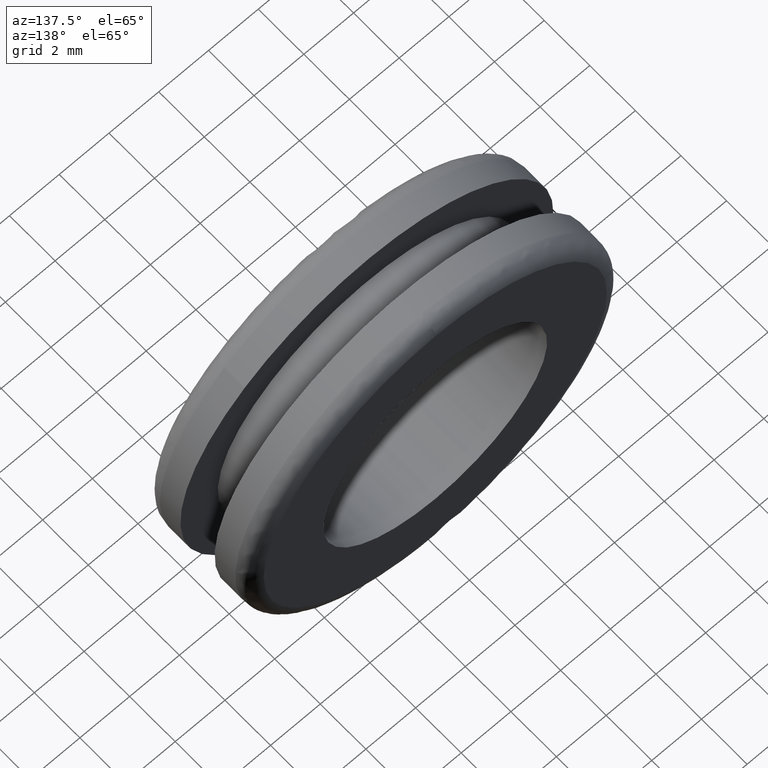
[diagram: clean part render]
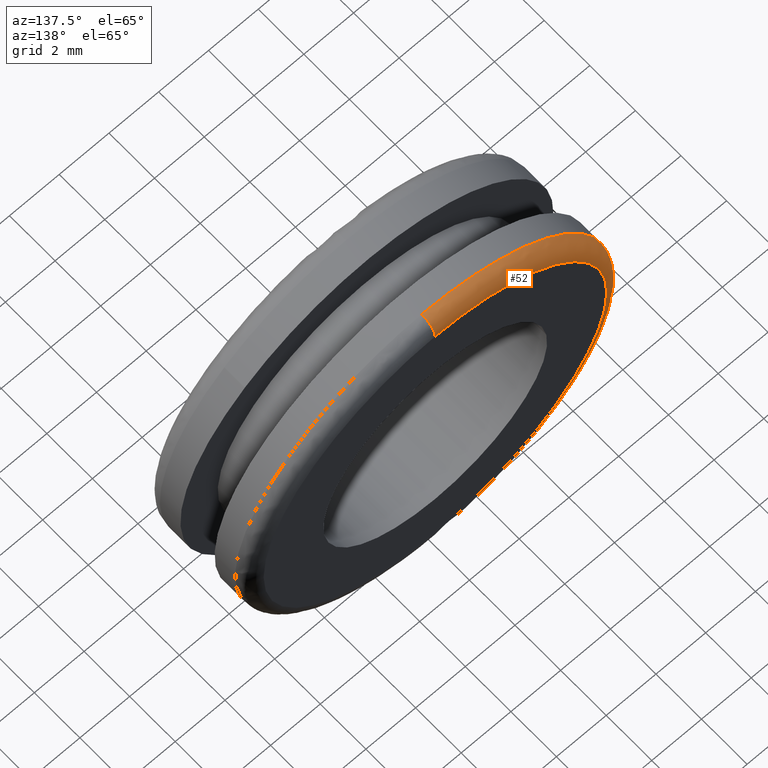
[diagram: same view with one face highlighted and labeled with its STEP entity id]
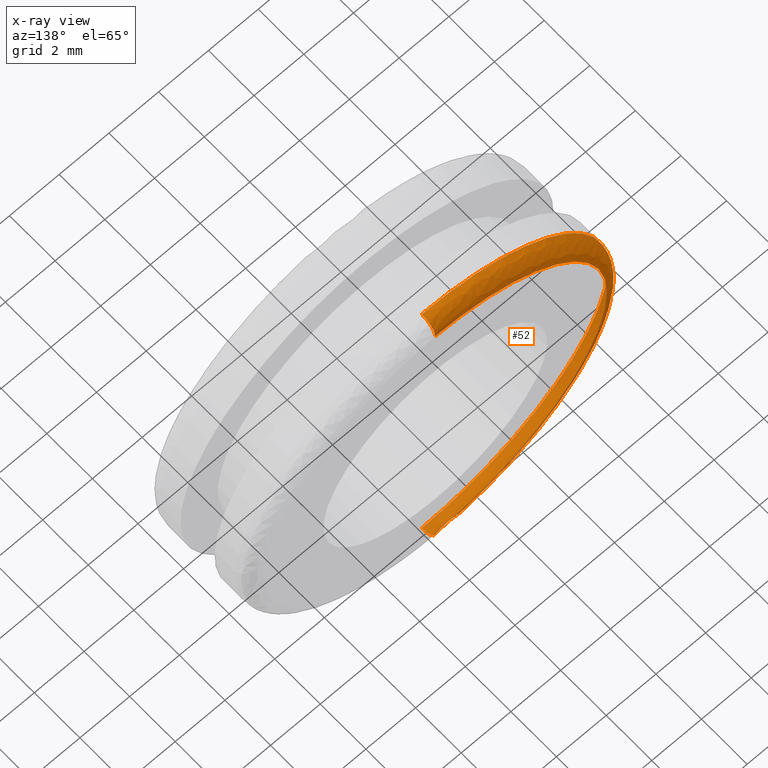
[diagram: x-ray of the same camera — body ghosted, the highlighted face saturated]
A machine part, auxiliary view. The second image highlights one B-rep face of the part: STEP entity #52.
The next image is the same camera in x-ray: the body ghosted, the highlighted face saturated — about 0% of this face is hidden behind the body in this view.
In plain terms, the highlighted face is a freeform B-spline surface patch.
Its self-contained STEP definition (entity closure, byte-faithful):
#52=ADVANCED_FACE('',(#181),#180,.T.);
#180=( BOUNDED_SURFACE() B_SPLINE_SURFACE( 2,2,((#284,#285,#286,#287,#288),(#289,#290,#291,#292,#293),(#294,#295,#296,#297,#298),(#299,#300,#301,#302,#303),(#304,#305,#306,#307,#308)), .UNSPECIFIED.,.F.,.F.,.F.) B_SPLINE_SURFACE_WITH_KNOTS((3,2,3),(3,2,3),(0.00000000000E+000,5.00000000000E-001,1.00000000000E+000),(0.00000000000E+000,5.00000000000E-001,1.00000000000E+000), .UNSPECIFIED. ) GEOMETRIC_REPRESENTATION_ITEM() RATIONAL_B_SPLINE_SURFACE(((1.00000000000E+000,7.07106781187E-001,1.00000000000E+000,7.07106781187E-001,1.00000000000E+000),(7.07106781187E-001,5.00000000000E-001,7.07106781187E-001,5.00000000000E-001,7.07106781187E-001),(1.00000000000E+000,7.07106781187E-001,1.00000000000E+000,7.07106781187E-001,1.00000000000E+000),(7.07106781187E-001,5.00000000000E-001,7.07106781187E-001,5.00000000000E-001,7.07106781187E-001),(1.00000000000E+000,7.07106781187E-001,1.00000000000E+000,7.07106781187E-001,1.00000000000E+000))) REPRESENTATION_ITEM('') SURFACE() );
#181=FACE_OUTER_BOUND('',#309,.T.);
#284=CARTESIAN_POINT('',(-1.72513750247E-014,3.90000000000E+000,6.30000000000E+000));
#285=CARTESIAN_POINT('',(-1.60042791616E-014,4.50000000000E+000,6.30000000000E+000));
#286=CARTESIAN_POINT('',(-1.60777555428E-014,4.50000000000E+000,6.90000000000E+000));
#287=CARTESIAN_POINT('',(-1.61512319240E-014,4.50000000000E+000,7.50000000000E+000));
#288=CARTESIAN_POINT('',(-1.73983277871E-014,3.90000000000E+000,7.50000000000E+000));
#289=CARTESIAN_POINT('',(-6.30000000000E+000,3.90000000000E+000,6.30000000000E+000));
#290=CARTESIAN_POINT('',(-6.30000000000E+000,4.50000000000E+000,6.30000000000E+000));
#291=CARTESIAN_POINT('',(-6.90000000000E+000,4.50000000000E+000,6.90000000000E+000));
#292=CARTESIAN_POINT('',(-7.50000000000E+000,4.50000000000E+000,7.50000000000E+000));
#293=CARTESIAN_POINT('',(-7.50000000000E+000,3.90000000000E+000,7.50000000000E+000));
#294=CARTESIAN_POINT('',(-6.30000000000E+000,3.90000000000E+000,-9.40608059639E-014));
#295=CARTESIAN_POINT('',(-6.30000000000E+000,4.50000000000E+000,-8.84053971206E-014));
#296=CARTESIAN_POINT('',(-6.90000000000E+000,4.50000000000E+000,-8.84421340978E-014));
#297=CARTESIAN_POINT('',(-7.50000000000E+000,4.50000000000E+000,-8.84788710751E-014));
#298=CARTESIAN_POINT('',(-7.50000000000E+000,3.90000000000E+000,-9.41342799184E-014));
#299=CARTESIAN_POINT('',(-6.30000000000E+000,3.90000000000E+000,-6.30000000000E+000));
#300=CARTESIAN_POINT('',(-6.30000000000E+000,4.50000000000E+000,-6.30000000000E+000));
#301=CARTESIAN_POINT('',(-6.90000000000E+000,4.50000000000E+000,-6.90000000000E+000));
#302=CARTESIAN_POINT('',(-7.50000000000E+000,4.50000000000E+000,-7.50000000000E+000));
#303=CARTESIAN_POINT('',(-7.50000000000E+000,3.90000000000E+000,-7.50000000000E+000));
#304=CARTESIAN_POINT('',(-1.64798985023E-014,3.90000000000E+000,-6.30000000000E+000));
#305=CARTESIAN_POINT('',(-1.52328026392E-014,4.50000000000E+000,-6.30000000000E+000));
#306=CARTESIAN_POINT('',(-1.52328050660E-014,4.50000000000E+000,-6.90000000000E+000));
#307=CARTESIAN_POINT('',(-1.52328074927E-014,4.50000000000E+000,-7.50000000000E+000));
#308=CARTESIAN_POINT('',(-1.64799033558E-014,3.90000000000E+000,-7.50000000000E+000));
#309=EDGE_LOOP('',(#456,#457,#458,#459,#460,#461,#462));
#456=ORIENTED_EDGE('',*,*,#520,.F.);
#457=ORIENTED_EDGE('',*,*,#517,.F.);
#458=ORIENTED_EDGE('',*,*,#516,.F.);
#459=ORIENTED_EDGE('',*,*,#522,.F.);
#460=ORIENTED_EDGE('',*,*,#492,.T.);
#461=ORIENTED_EDGE('',*,*,#494,.T.);
#462=ORIENTED_EDGE('',*,*,#523,.T.);
#492=EDGE_CURVE('',#610,#611,#612,.T.);
#494=EDGE_CURVE('',#611,#618,#625,.T.);
#516=EDGE_CURVE('',#766,#773,#774,.T.);
#517=EDGE_CURVE('',#773,#780,#781,.T.);
#520=EDGE_CURVE('',#780,#799,#800,.T.);
#522=EDGE_CURVE('',#610,#766,#812,.T.);
#523=EDGE_CURVE('',#618,#799,#818,.T.);
#610=VERTEX_POINT('',#896);
#611=VERTEX_POINT('',#897);
#612=CIRCLE('',#901,6.90000000520E+000);
#618=VERTEX_POINT('',#902);
#625=CIRCLE('',#910,6.90000000520E+000);
#766=VERTEX_POINT('',#994);
#773=VERTEX_POINT('',#999);
#774=CIRCLE('',#1003,7.49999999998E+000);
#780=VERTEX_POINT('',#1004);
#781=CIRCLE('',#1008,7.50000000000E+000);
#799=VERTEX_POINT('',#1013);
#800=CIRCLE('',#1017,7.50000000000E+000);
#812=(BOUNDED_CURVE() B_SPLINE_CURVE(2,(#1022,#1023,#1024),.UNSPECIFIED.,.F.,.F.) B_SPLINE_CURVE_WITH_KNOTS((3,3),(5.00000000000E-001,1.00000000000E+000),.UNSPECIFIED.) CURVE() GEOMETRIC_REPRESENTATION_ITEM() RATIONAL_B_SPLINE_CURVE((1.00000000000E+000,7.07106781187E-001,1.00000000000E+000)) REPRESENTATION_ITEM('') );
#818=(BOUNDED_CURVE() B_SPLINE_CURVE(3,(#1025,#1026,#1027,#1028),.UNSPECIFIED.,.F.,.F.) B_SPLINE_CURVE_WITH_KNOTS((4,4),(4.99999982676E-001,1.00000000000E+000),.UNSPECIFIED.) CURVE() GEOMETRIC_REPRESENTATION_ITEM() RATIONAL_B_SPLINE_CURVE((1.00000000000E+000,1.00000000000E+000,1.00000000000E+000,1.00000000000E+000)) REPRESENTATION_ITEM('') );
#896=CARTESIAN_POINT('',(-1.53996691310E-014,4.50000000000E+000,6.90000001040E+000));
#897=CARTESIAN_POINT('',(-6.90000000519E+000,4.50000000000E+000,5.32907051820E-015));
#898=CARTESIAN_POINT('',(1.10631503958E-011,4.50000000000E+000,5.19816900635E-009));
#899=DIRECTION('',(9.96634506180E-016,-1.00000000000E+000,3.47627673929E-015));
#900=DIRECTION('',(-1.00000000000E+000,-9.96634508799E-016,-7.53357487504E-010));
#901=AXIS2_PLACEMENT_3D('',#898,#899,#900);
#902=CARTESIAN_POINT('',(7.16087894994E-004,4.50000000000E+000,-6.89999996284E+000));
#907=CARTESIAN_POINT('',(1.10631503958E-011,4.50000000000E+000,5.19816900635E-009));
#908=DIRECTION('',(9.96634506180E-016,-1.00000000000E+000,3.47627673929E-015));
#909=DIRECTION('',(-1.00000000000E+000,-9.96634508799E-016,-7.53357487504E-010));
#910=AXIS2_PLACEMENT_3D('',#907,#908,#909);
#994=CARTESIAN_POINT('',(-1.64699003846E-014,3.90000000000E+000,7.50000000000E+000));
#999=CARTESIAN_POINT('',(-2.64976474995E+000,3.90000000001E+000,-7.01632003047E+000));
#1000=CARTESIAN_POINT('',(6.70574706874E-014,3.90000000000E+000,2.04591898978E-011));
#1001=DIRECTION('',(1.89461399911E-015,-1.00000000000E+000,5.04420708884E-015));
#1002=DIRECTION('',(-3.51617427213E-001,-5.38828241286E-015,-9.36143784298E-001));
#1003=AXIS2_PLACEMENT_3D('',#1000,#1001,#1002);
#1004=CARTESIAN_POINT('',(-2.63713480046E+000,3.90000000001E+000,-7.02107684363E+000));
#1005=CARTESIAN_POINT('',(-1.01474384451E-013,3.90000000015E+000,-5.79092329644E-013));
#1006=DIRECTION('',(1.14491859716E-015,-1.00000000000E+000,1.98618427697E-011));
#1007=DIRECTION('',(3.53301966660E-001,1.85813438710E-011,9.35509337395E-001));
#1008=AXIS2_PLACEMENT_3D('',#1005,#1006,#1007);
#1013=CARTESIAN_POINT('',(0.00000000000E+000,3.90000000000E+000,-7.50000000000E+000));
#1014=CARTESIAN_POINT('',(-1.01474384451E-013,3.90000000015E+000,-5.79092329644E-013));
#1015=DIRECTION('',(1.14491859716E-015,-1.00000000000E+000,1.98618427697E-011));
#1016=DIRECTION('',(3.53301966660E-001,1.85813438710E-011,9.35509337395E-001));
#1017=AXIS2_PLACEMENT_3D('',#1014,#1015,#1016);
#1022=CARTESIAN_POINT('',(-1.60777555428E-014,4.50000000000E+000,6.90000000000E+000));
#1023=CARTESIAN_POINT('',(-1.61512319240E-014,4.50000000000E+000,7.50000000000E+000));
#1024=CARTESIAN_POINT('',(-1.73983277871E-014,3.90000000000E+000,7.50000000000E+000));
#1025=CARTESIAN_POINT('',(-1.48029736236E-014,4.50000000000E+000,-6.89999997060E+000));
#1026=CARTESIAN_POINT('',(-1.45403651051E-014,4.46568543916E+000,-7.26568541074E+000));
#1027=CARTESIAN_POINT('',(-1.48364245910E-014,4.26568543916E+000,-7.46568542054E+000));
#1028=CARTESIAN_POINT('',(-1.56911520814E-014,3.90000000000E+000,-7.50000000000E+000));